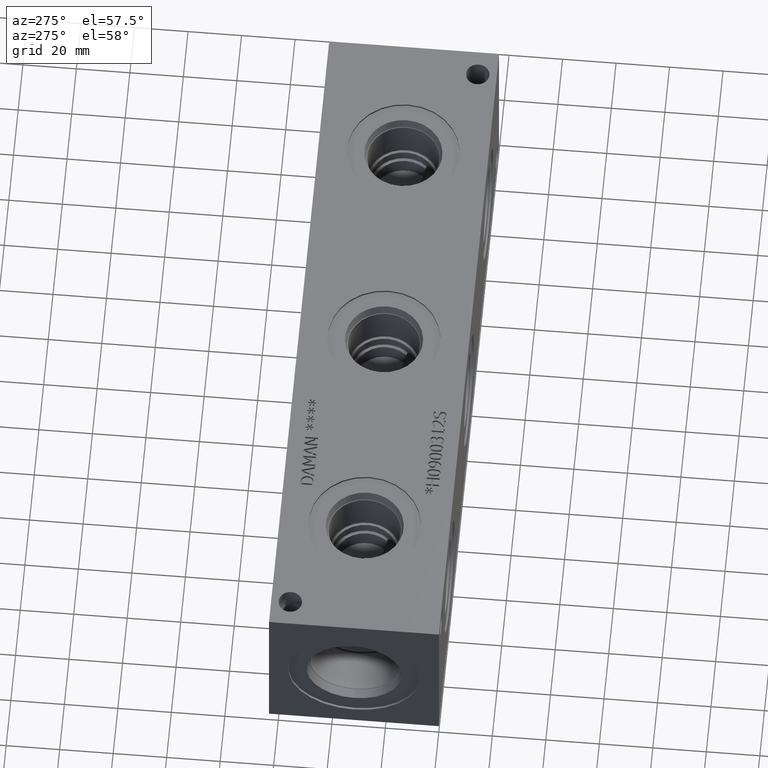
[diagram: clean part render]
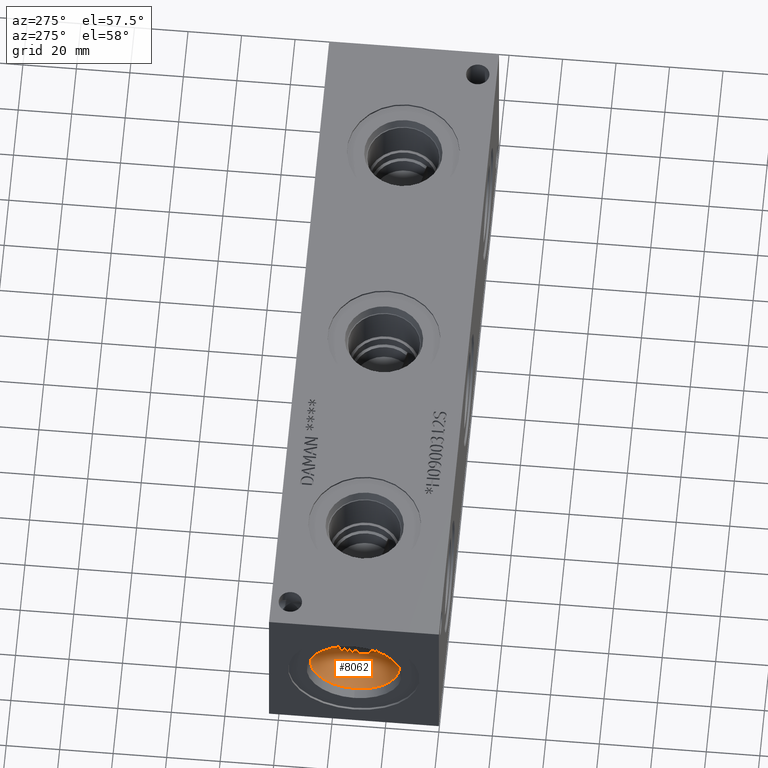
[diagram: same view with one face highlighted and labeled with its STEP entity id]
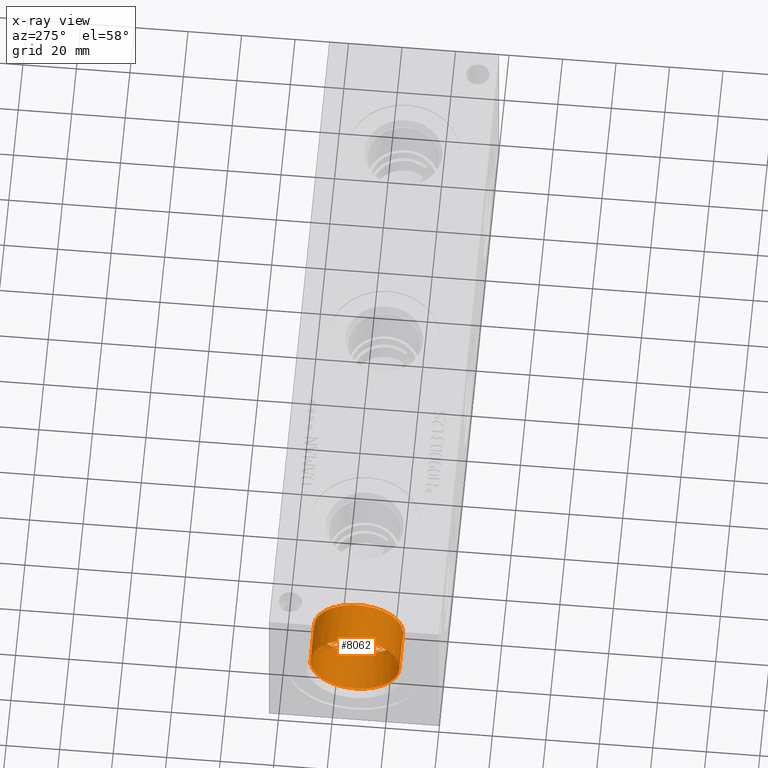
[diagram: x-ray of the same camera — body ghosted, the highlighted face saturated]
A machine part, auxiliary view. The second image highlights one B-rep face of the part: STEP entity #8062.
The next image is the same camera in x-ray: the body ghosted, the highlighted face saturated — about 1% of this face is hidden behind the body in this view.
In plain terms, the highlighted cylindrical surface (bore or boss wall) has radius 16.67 mm, axis along (-1, 0, 0).
Its self-contained STEP definition (entity closure, byte-faithful):
#37=CYLINDRICAL_SURFACE('',#8419,16.67);
#140=CIRCLE('',#8416,16.67);
#141=CIRCLE('',#8417,16.67);
#143=CIRCLE('',#8420,16.67);
#144=CIRCLE('',#8421,16.67);
#987=FACE_OUTER_BOUND('',#1436,.T.);
#1436=EDGE_LOOP('',(#6748,#6749,#6750,#6751,#6752,#6753));
#2210=LINE('',#13646,#2946);
#2946=VECTOR('',#9835,16.67);
#3634=VERTEX_POINT('',#13636);
#3635=VERTEX_POINT('',#13637);
#3637=VERTEX_POINT('',#13643);
#3638=VERTEX_POINT('',#13644);
#4697=EDGE_CURVE('',#3634,#3635,#140,.T.);
#4698=EDGE_CURVE('',#3635,#3634,#141,.T.);
#4700=EDGE_CURVE('',#3637,#3638,#143,.T.);
#4701=EDGE_CURVE('',#3637,#3635,#2210,.T.);
#4702=EDGE_CURVE('',#3638,#3637,#144,.T.);
#6748=ORIENTED_EDGE('',*,*,#4700,.F.);
#6749=ORIENTED_EDGE('',*,*,#4701,.T.);
#6750=ORIENTED_EDGE('',*,*,#4697,.F.);
#6751=ORIENTED_EDGE('',*,*,#4698,.F.);
#6752=ORIENTED_EDGE('',*,*,#4701,.F.);
#6753=ORIENTED_EDGE('',*,*,#4702,.F.);
#8062=ADVANCED_FACE('',(#987),#37,.F.);
#8416=AXIS2_PLACEMENT_3D('',#13638,#9825,#9826);
#8417=AXIS2_PLACEMENT_3D('',#13639,#9827,#9828);
#8419=AXIS2_PLACEMENT_3D('',#13642,#9831,#9832);
#8420=AXIS2_PLACEMENT_3D('',#13645,#9833,#9834);
#8421=AXIS2_PLACEMENT_3D('',#13647,#9836,#9837);
#9825=DIRECTION('center_axis',(-1.,0.,0.));
#9826=DIRECTION('ref_axis',(0.,1.,0.));
#9827=DIRECTION('center_axis',(-1.,0.,0.));
#9828=DIRECTION('ref_axis',(0.,1.,0.));
#9831=DIRECTION('center_axis',(-1.,0.,0.));
#9832=DIRECTION('ref_axis',(0.,1.,0.));
#9833=DIRECTION('center_axis',(1.,0.,0.));
#9834=DIRECTION('ref_axis',(0.,1.,0.));
#9835=DIRECTION('',(1.,0.,0.));
#9836=DIRECTION('center_axis',(1.,0.,0.));
#9837=DIRECTION('ref_axis',(0.,1.,0.));
#13636=CARTESIAN_POINT('',(19.8374,48.42,31.75));
#13637=CARTESIAN_POINT('',(19.8374,15.08,31.75));
#13638=CARTESIAN_POINT('Origin',(19.8374,31.75,31.75));
#13639=CARTESIAN_POINT('Origin',(19.8374,31.75,31.75));
#13642=CARTESIAN_POINT('Origin',(9.9187,31.75,31.75));
#13643=CARTESIAN_POINT('',(4.2723,15.08,31.75));
#13644=CARTESIAN_POINT('',(4.2723,31.75,15.08));
#13645=CARTESIAN_POINT('Origin',(4.2723,31.75,31.75));
#13646=CARTESIAN_POINT('',(9.9187,15.08,31.75));
#13647=CARTESIAN_POINT('Origin',(4.2723,31.75,31.75));